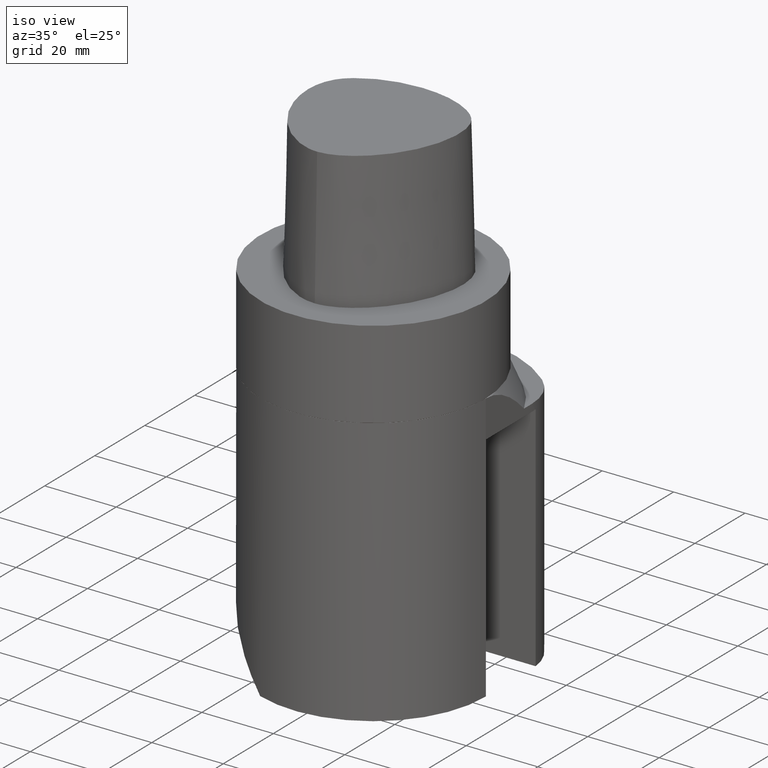
[diagram: clean part render]
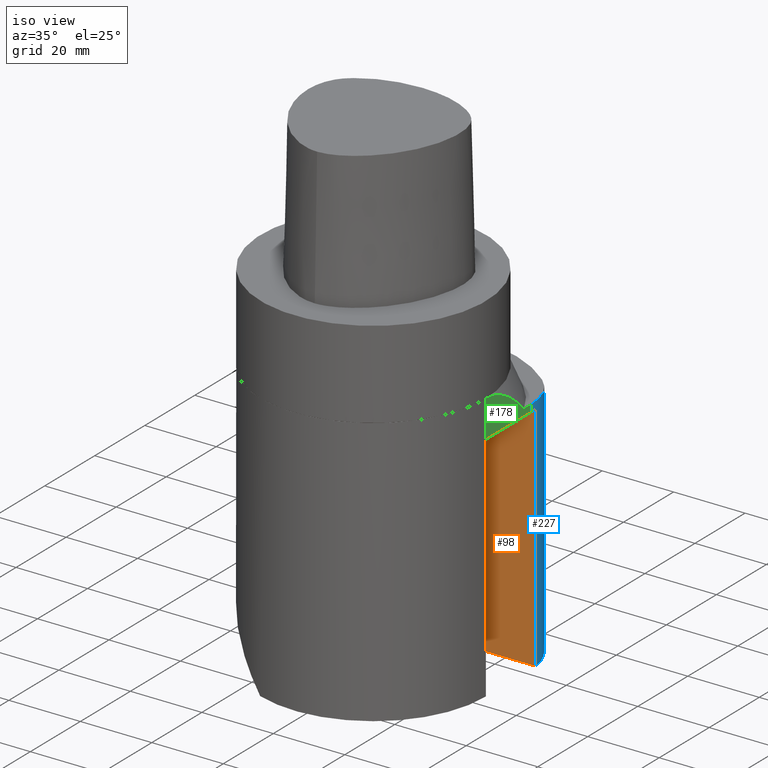
[diagram: same view with three faces highlighted in distinct colors, each labeled with its STEP entity id]
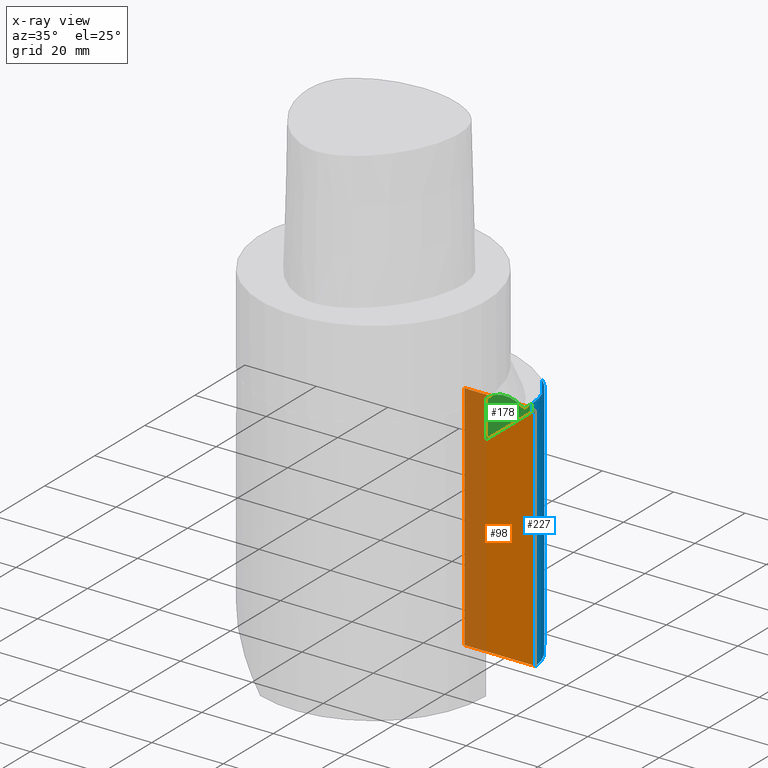
[diagram: x-ray of the same camera — body ghosted, the three highlighted faces saturated]
A machine part, iso view with three faces highlighted in distinct colors.
The next image is the same camera in x-ray (body ghosted, the three faces saturated) — at least one of them is partly hidden behind the body in this view.
Their STEP definitions:

[orange] entity #98 — the highlighted planar face has unit normal (0, 1, -0).
#98=ADVANCED_FACE('240[2]',(#275),#276,.F.);
#106=EDGE_CURVE('240[2]',#290,#291,#292,.T.);
#197=EDGE_CURVE('240[2]',#286,#290,#415,.T.);
#211=EDGE_CURVE('240[2]',#369,#286,#432,.T.);
#236=EDGE_CURVE('240[2]',#369,#291,#461,.F.);
#275=FACE_OUTER_BOUND('',#495,.T.);
#276=PLANE('',#496);
#286=VERTEX_POINT('',#519);
#290=VERTEX_POINT('',#525);
#291=VERTEX_POINT('',#526);
#292=LINE('',#527,#528);
#369=VERTEX_POINT('',#683);
#415=LINE('',#822,#823);
#432=LINE('',#861,#862);
#461=LINE('',#905,#906);
#495=EDGE_LOOP('',(#1045,#1046,#1047,#1048));
#496=AXIS2_PLACEMENT_3D('',#1049,#1050,#1051);
#519=CARTESIAN_POINT('',(11.5000000000002,20.0000000000005,-99.9999998226051));
#525=CARTESIAN_POINT('',(11.5000000000002,20.0000000000005,-34.9999998226051));
#526=CARTESIAN_POINT('',(31.4119228276272,20.0,-34.9999998226051));
#527=CARTESIAN_POINT('',(11.5000000000002,20.0000000000005,-34.9999998226051));
#528=VECTOR('',#1054,1.0);
#683=CARTESIAN_POINT('',(31.4119228276271,20.0,-99.9999998226051));
#822=CARTESIAN_POINT('',(11.5000000000002,20.0000000000005,-244.999999822605));
#823=VECTOR('',#1204,1.0);
#861=CARTESIAN_POINT('',(10.7279807069069,20.0000000000005,-99.9999998226051));
#862=VECTOR('',#1225,1.0);
#905=CARTESIAN_POINT('',(31.4119228276271,20.0000000000003,-244.999999822605));
#906=VECTOR('',#1270,1.0);
#1045=ORIENTED_EDGE('',*,*,#106,.F.);
#1046=ORIENTED_EDGE('',*,*,#197,.F.);
#1047=ORIENTED_EDGE('',*,*,#211,.F.);
#1048=ORIENTED_EDGE('',*,*,#236,.T.);
#1049=CARTESIAN_POINT('',(21.4559614138137,20.0000000000003,-244.999999822605));
#1050=DIRECTION('',(3.44350954537625E-046,1.0,-1.2246467991421E-016));
#1051=DIRECTION('',(1.0,0.0,2.81183893003969E-030));
#1054=DIRECTION('',(1.0,-2.2960407294654E-014,-6.12323399573649E-017));
#1204=DIRECTION('',(6.12323399573677E-017,1.22464679914735E-016,1.0));
#1225=DIRECTION('',(-1.0,2.2960407294654E-014,6.12323399573649E-017));
#1270=DIRECTION('',(-6.12323399573677E-017,-1.22464679914735E-016,-1.0));

[blue] entity #227 — the highlighted cylindrical surface (partial cylindrical patch) has radius 16 mm, axis along (0, 0, 1).
#100=EDGE_CURVE('240[2]',#278,#279,#280,.T.);
#162=EDGE_CURVE('240[2]',#368,#369,#370,.T.);
#164=EDGE_CURVE('240[2]',#279,#372,#373,.T.);
#201=EDGE_CURVE('240[2]',#291,#278,#419,.F.);
#215=EDGE_CURVE('240[2]',#368,#372,#436,.T.);
#227=ADVANCED_FACE('240[2]',(#450),#451,.T.);
#236=EDGE_CURVE('240[2]',#369,#291,#461,.F.);
#278=VERTEX_POINT('',#499);
#279=VERTEX_POINT('',#500);
#280=LINE('',#501,#502);
#291=VERTEX_POINT('',#526);
#368=VERTEX_POINT('',#682);
#369=VERTEX_POINT('',#683);
#370=CIRCLE('',#684,16.0000000000003);
#372=VERTEX_POINT('',#687);
#373=CIRCLE('',#688,16.0000000000003);
#419=CIRCLE('',#844,16.0000000000003);
#436=LINE('',#868,#869);
#450=FACE_OUTER_BOUND('',#889,.T.);
#451=CYLINDRICAL_SURFACE('',#890,16.0000000000003);
#461=LINE('',#905,#906);
#499=CARTESIAN_POINT('',(31.5000000000005,18.3234822018079,-34.9999998226051));
#500=CARTESIAN_POINT('',(31.5000000000005,18.323482201808,-32.9999999999964));
#501=CARTESIAN_POINT('',(31.5000000000005,18.3234822018079,-244.999999822605));
#502=VECTOR('',#1052,1.0);
#526=CARTESIAN_POINT('',(31.4119228276272,20.0,-34.9999998226051));
#682=CARTESIAN_POINT('',(25.8333333333343,30.5391370030137,-99.9999998226051));
#683=CARTESIAN_POINT('',(31.4119228276271,20.0,-99.9999998226051));
#684=AXIS2_PLACEMENT_3D('',#1133,#1134,#1135);
#687=CARTESIAN_POINT('',(25.833333333334,30.539137003014,-32.9999999999964));
#688=AXIS2_PLACEMENT_3D('',#1136,#1137,#1138);
#844=AXIS2_PLACEMENT_3D('',#1205,#1206,#1207);
#868=CARTESIAN_POINT('',(25.833333333334,30.539137003014,-244.999999822605));
#869=VECTOR('',#1229,1.0);
#889=EDGE_LOOP('',(#1247,#1248,#1249,#1250,#1251,#1252));
#890=AXIS2_PLACEMENT_3D('',#1253,#1254,#1255);
#905=CARTESIAN_POINT('',(31.4119228276271,20.0000000000003,-244.999999822605));
#906=VECTOR('',#1270,1.0);
#1052=DIRECTION('',(6.12323399573677E-017,1.22464679914735E-016,1.0));
#1133=CARTESIAN_POINT('',(15.5000000000002,18.3234822018082,-99.9999998226051));
#1134=DIRECTION('',(-6.12323399573677E-017,-1.22464679914735E-016,-1.0));
#1135=DIRECTION('',(1.0,-2.44929359829471E-016,-6.12323399573677E-017));
#1136=CARTESIAN_POINT('',(15.5000000000002,18.3234822018082,-32.9999999999964));
#1137=DIRECTION('',(6.12323399573677E-017,1.22464679914735E-016,1.0));
#1138=DIRECTION('',(1.0,-2.44929359829471E-016,-6.12323399573677E-017));
#1205=CARTESIAN_POINT('',(15.5000000000002,18.3234822018081,-34.9999998226051));
#1206=DIRECTION('',(5.34329236508096E-033,1.22464679914735E-016,1.0));
#1207=DIRECTION('',(1.0,-2.44929359829471E-016,2.46519032881562E-032));
#1229=DIRECTION('',(6.12323399573677E-017,1.22464679914735E-016,1.0));
#1247=ORIENTED_EDGE('',*,*,#162,.F.);
#1248=ORIENTED_EDGE('',*,*,#215,.T.);
#1249=ORIENTED_EDGE('',*,*,#164,.F.);
#1250=ORIENTED_EDGE('',*,*,#100,.F.);
#1251=ORIENTED_EDGE('',*,*,#201,.F.);
#1252=ORIENTED_EDGE('',*,*,#236,.F.);
#1253=CARTESIAN_POINT('',(15.5000000000002,18.3234822018081,-244.999999822605));
#1254=DIRECTION('',(6.12323399573677E-017,1.22464679914735E-016,1.0));
#1255=DIRECTION('',(1.0,-2.44929359829471E-016,-6.12323399573677E-017));
#1270=DIRECTION('',(-6.12323399573677E-017,-1.22464679914735E-016,-1.0));

[green] entity #178 — the highlighted planar face has unit normal (-1, 0, 0).
#95=EDGE_CURVE('240[2]',#270,#271,#272,.T.);
#100=EDGE_CURVE('240[2]',#278,#279,#280,.T.);
#121=EDGE_CURVE('240[2]',#314,#279,#315,.T.);
#178=ADVANCED_FACE('240[2]',(#389),#390,.F.);
#180=EDGE_CURVE('240[2]',#270,#278,#392,.T.);
#240=EDGE_CURVE('240[2]',#271,#314,#465,.T.);
#270=VERTEX_POINT('',#488);
#271=VERTEX_POINT('',#489);
#272=LINE('',#490,#491);
#278=VERTEX_POINT('',#499);
#279=VERTEX_POINT('',#500);
#280=LINE('',#501,#502);
#314=VERTEX_POINT('',#592);
#315=LINE('',#593,#594);
#389=FACE_OUTER_BOUND('',#721,.T.);
#390=PLANE('',#722);
#392=LINE('',#725,#726);
#465=(B_SPLINE_CURVE(2,(#913,#914,#915),.UNSPECIFIED.,.F.,.F.)B_SPLINE_CURVE_WITH_KNOTS((3,3),(17.4185009161124,34.8370018322249),.UNSPECIFIED.)RATIONAL_B_SPLINE_CURVE((1.05555555555563,1.05555555555563,1.0))BOUNDED_CURVE()REPRESENTATION_ITEM('')GEOMETRIC_REPRESENTATION_ITEM()CURVE());
#488=CARTESIAN_POINT('',(31.5000000000002,-5.15078432459043E-013,-34.9999998226051));
#489=CARTESIAN_POINT('',(31.5000000000003,-3.97903932025656E-013,-24.5943962641397));
#490=CARTESIAN_POINT('',(31.5000000000003,-4.2632564145606E-013,-244.999999822605));
#491=VECTOR('',#1043,1.0);
#499=CARTESIAN_POINT('',(31.5000000000005,18.3234822018079,-34.9999998226051));
#500=CARTESIAN_POINT('',(31.5000000000005,18.323482201808,-32.9999999999964));
#501=CARTESIAN_POINT('',(31.5000000000005,18.3234822018079,-244.999999822605));
#502=VECTOR('',#1052,1.0);
#592=CARTESIAN_POINT('',(31.5000000000005,15.2561463024038,-32.9999999999964));
#593=CARTESIAN_POINT('',(31.5000000000006,23.3308705504531,-32.9999999999964));
#594=VECTOR('',#1068,1.0);
#721=EDGE_LOOP('',(#1155,#1156,#1157,#1158,#1159));
#722=AXIS2_PLACEMENT_3D('',#1160,#1161,#1162);
#725=CARTESIAN_POINT('',(31.5000000000003,4.48087055045164,-34.9999998226051));
#726=VECTOR('',#1163,1.0);
#913=CARTESIAN_POINT('',(31.5000000000003,-3.9252811527481E-013,-24.5943962641397));
#914=CARTESIAN_POINT('',(31.5000000000004,7.22659561692732,-24.5943962641397));
#915=CARTESIAN_POINT('',(31.5000000000005,15.2561463024037,-32.9999999999964));
#1043=DIRECTION('',(6.12323399573677E-017,1.22464679914735E-016,1.0));
#1052=DIRECTION('',(6.12323399573677E-017,1.22464679914735E-016,1.0));
#1068=DIRECTION('',(1.25313328709615E-014,1.0,-1.22464679914736E-016));
#1155=ORIENTED_EDGE('',*,*,#121,.F.);
#1156=ORIENTED_EDGE('',*,*,#240,.F.);
#1157=ORIENTED_EDGE('',*,*,#95,.F.);
#1158=ORIENTED_EDGE('',*,*,#180,.T.);
#1159=ORIENTED_EDGE('',*,*,#100,.T.);
#1160=CARTESIAN_POINT('',(31.5000000000004,9.16174110090378,-244.999999822605));
#1161=DIRECTION('',(-1.0,1.25313328709615E-014,6.12323399573662E-017));
#1162=DIRECTION('',(6.12323399573662E-017,0.0,1.0));
#1163=DIRECTION('',(1.25313328709615E-014,1.0,-1.22464679914736E-016));